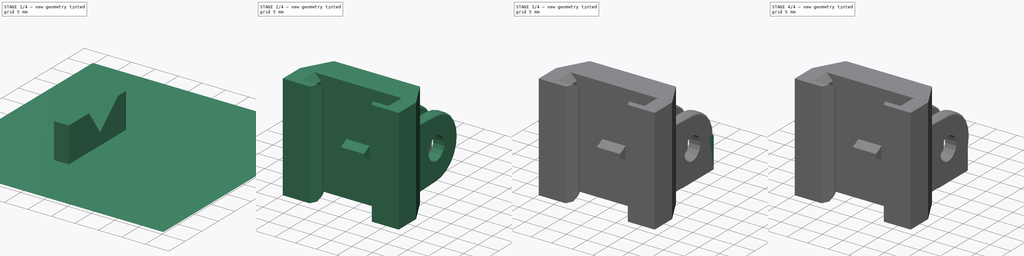
[diagram: build sequence overview — one tinted view per stage of 4, left to right]
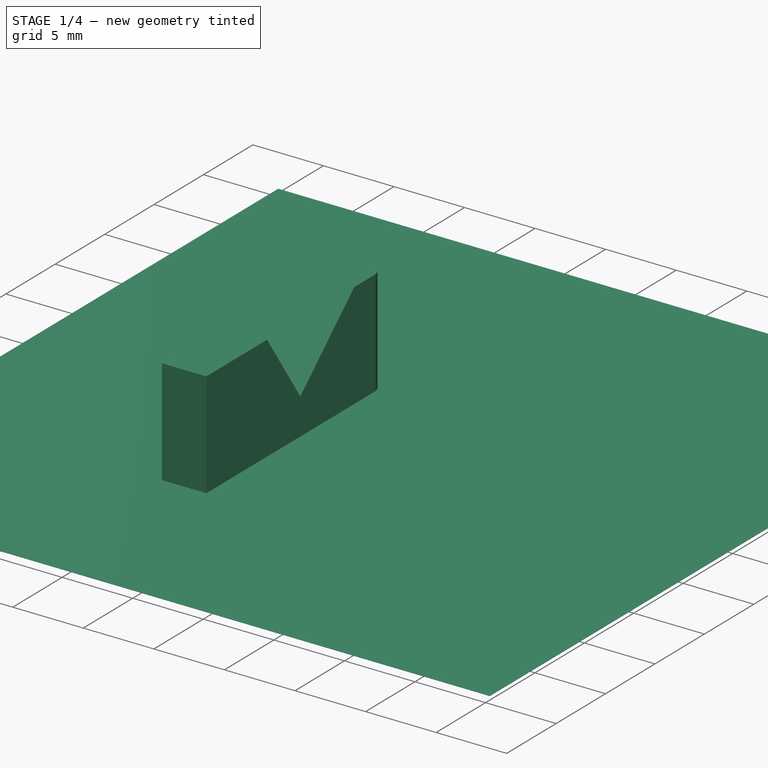
[diagram: stage 1 of 4 — iso view after this stage's code; geometry added in this stage tinted green]
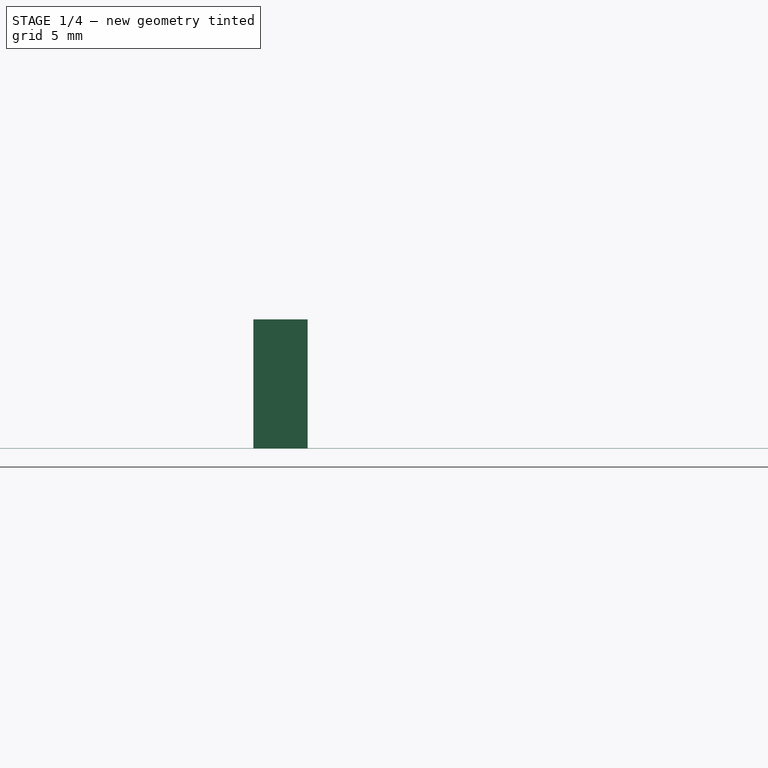
[diagram: stage 1 of 4 — front view after this stage's code; geometry added in this stage tinted green]
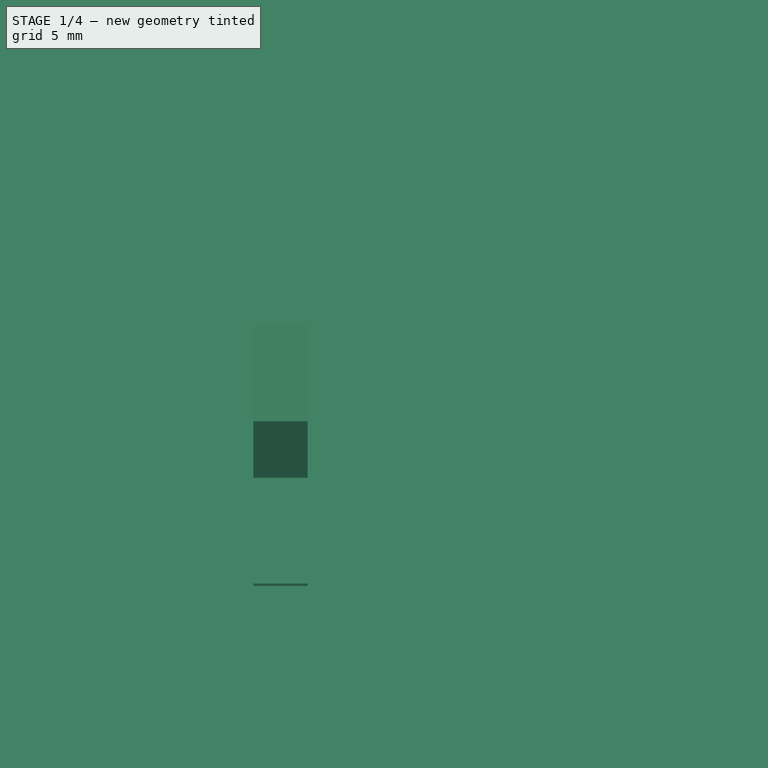
[diagram: stage 1 of 4 — top view after this stage's code; geometry added in this stage tinted green]
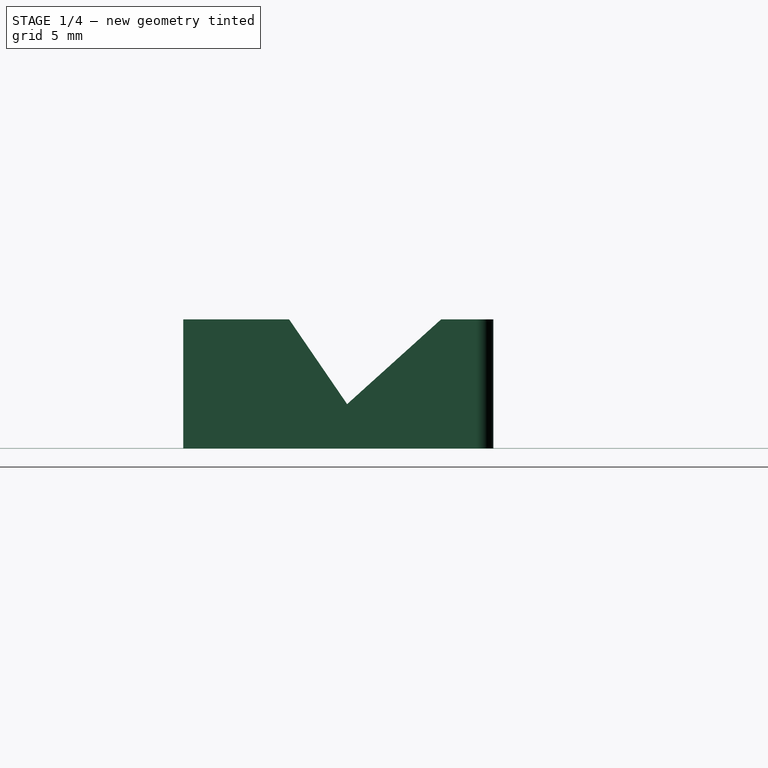
[diagram: stage 1 of 4 — right view after this stage's code; geometry added in this stage tinted green]
FCSTD DOCUMENT  (FreeCAD 0.16R6045 (Git))
Label: nerf_gopro
License: All rights reserved
LicenseURL: http://en.wikipedia.org/wiki/All_rights_reserved
objects: PartDesign::Fillet×4, Part::Box×4, Sketcher::SketchObject×3, PartDesign::Pocket×3, Part::Feature×2, Part::MultiFuse×2, Part::Cut×1
note: 22 computed .brp shape members not serialized (recipe doc carries the construction recipe); baked Part::Feature solids carry a one-line shape summary decoded from their .brp

FEATURE [Part::Box] Box  label="Cube"
  Height = 0.02
  Length = 50
  Placement = pos=(-19,-11,0) rot=(0,0,1;0rad)
  Width = 50
FEATURE [Part::Box] Box003  label="Cube003"
  Height = 7.5
  Length = 3.15
  Placement = pos=(-1.58,2.35,0) rot=(0,0,1;0rad)
  Width = 18
FEATURE [Sketcher::SketchObject] Sketch002
  Placement = pos=(-1.58,2.35,0) rot=(0.57735,-0.57735,-0.57735;2.0944rad)
  Support = -> Box003 [Face1]
  sketch-geometry (3):
    g0: LineSegment StartX=-15.5982 StartY=8.07292 StartZ=0 EndX=-9.50937 EndY=2.58212 EndZ=0
    g1: LineSegment StartX=-9.50937 StartY=2.58212 StartZ=0 EndX=-5.26895 EndY=8.77965 EndZ=0
    g2: LineSegment StartX=-5.26895 StartY=8.77965 StartZ=0 EndX=-15.5982 EndY=8.07292 EndZ=0
  constraints (3):
    c: Coincident(g0,g1)
    c: Coincident(g1,g2)
    c: Coincident(g2,g0)
FEATURE [PartDesign::Pocket] Pocket002
  Length = 5
  Placement = pos=(-1.58,2.35,0) rot=(0,0,1;0rad)
  Sketch = -> Sketch002
  Type = 0
FEATURE [PartDesign::Fillet] Fillet003
  Base = -> Pocket002 [Edge5,Edge18]
  Placement = pos=(-1.58,2.35,0) rot=(0,0,1;0rad)
  Radius = 1
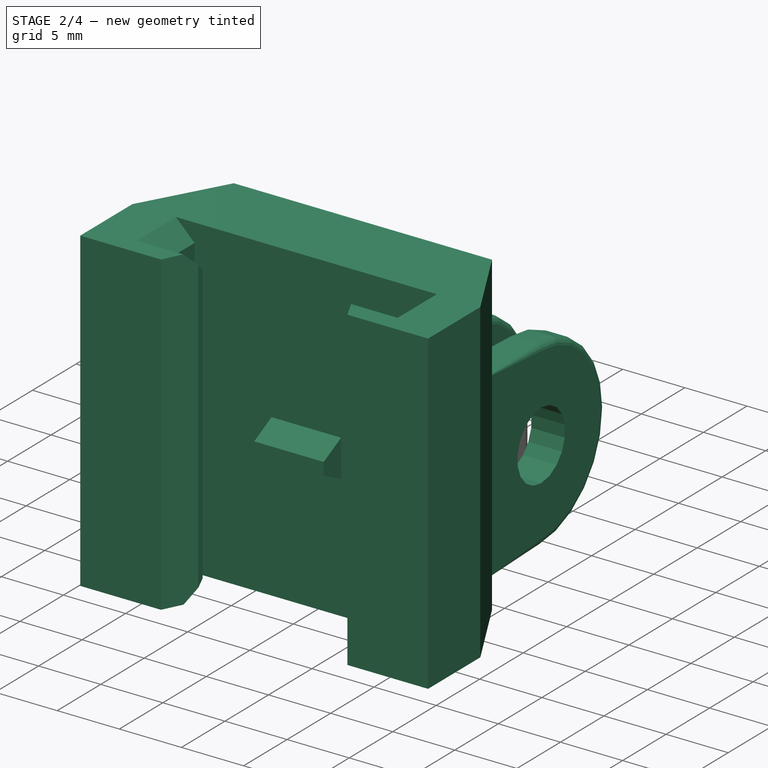
[diagram: stage 2 of 4 — iso view after this stage's code; geometry added in this stage tinted green]
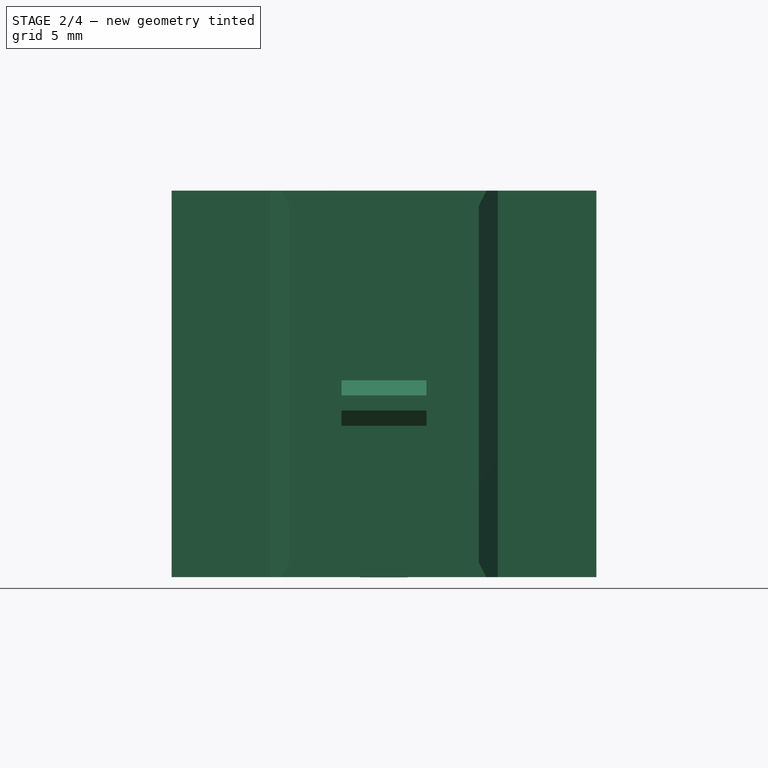
[diagram: stage 2 of 4 — front view after this stage's code; geometry added in this stage tinted green]
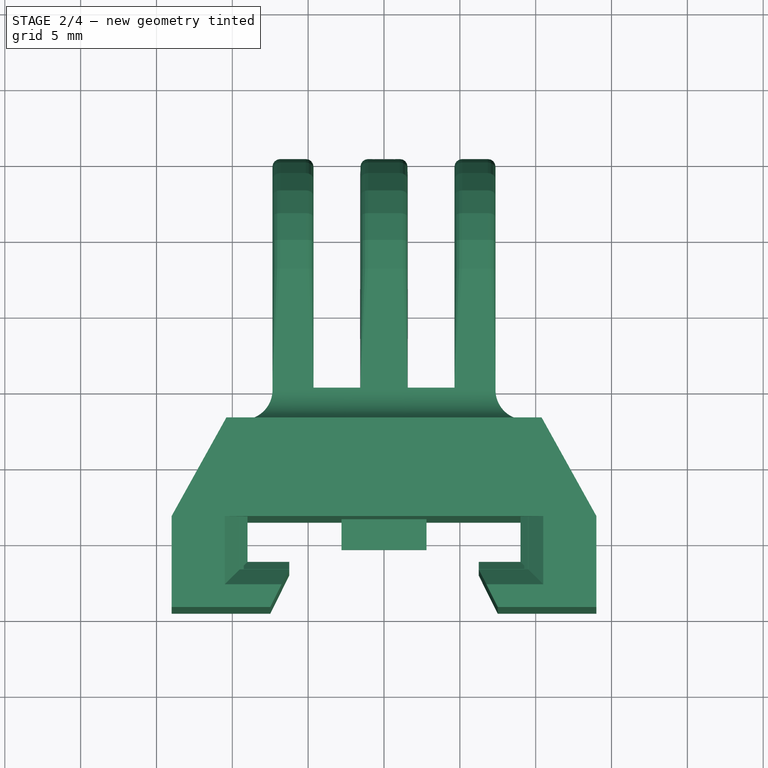
[diagram: stage 2 of 4 — top view after this stage's code; geometry added in this stage tinted green]
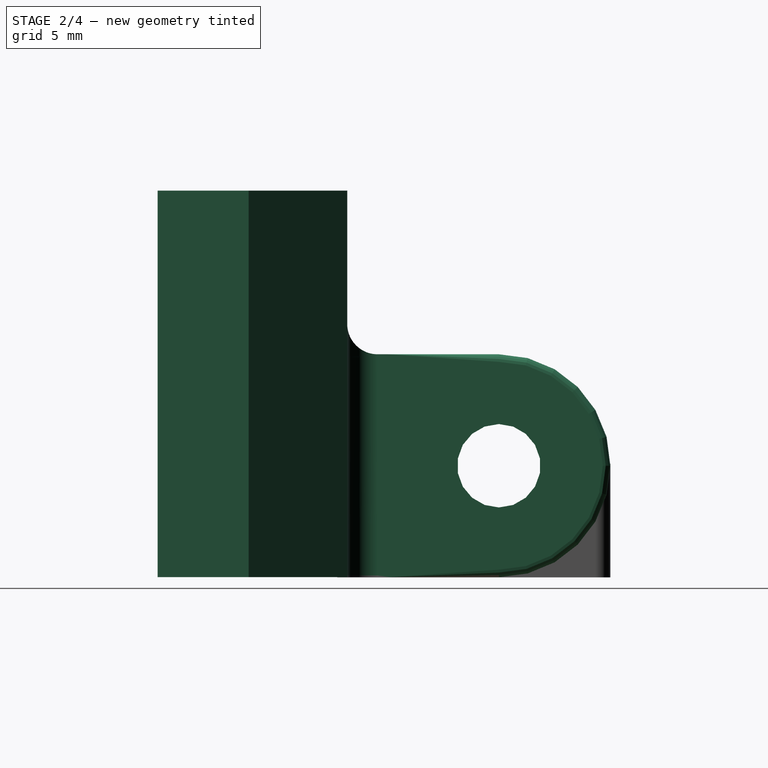
[diagram: stage 2 of 4 — right view after this stage's code; geometry added in this stage tinted green]
FEATURE [Part::Feature] gpm_triple_naked001_solid  label="gpm_triple_naked001 (Solid)"
  Placement = pos=(0,0,-5.64) rot=(0,0,1;0rad)
  shape: bbox 14.7 x 18.2 x 14.7 mm, 1154 faces (baked)
FEATURE [Part::Feature] Cut001_solid  label="Cut001 (Solid)"
  shape: bbox 28 x 12.5 x 25.5 mm, 143 faces (baked)
FEATURE [Part::MultiFuse] Fusion
  Shapes = -> [gpm_triple_naked001_solid,Cut001_solid]
FEATURE [PartDesign::Fillet] Fillet
  Base = -> Fusion [Edge363,Edge383,Edge396]
  Radius = 2
FEATURE [Part::Cut] Cut
  Base = -> Fillet
  Tool = -> Box
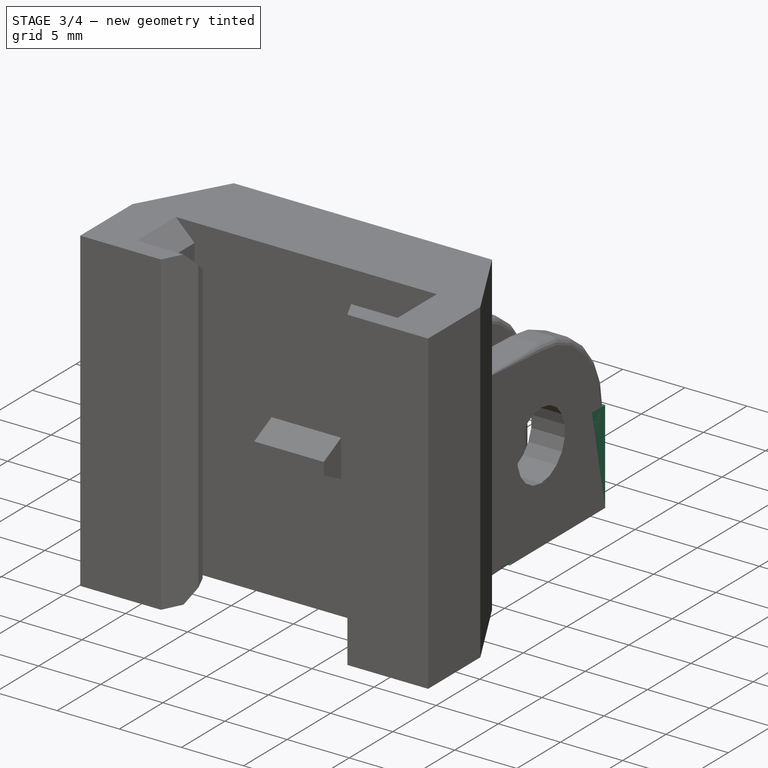
[diagram: stage 3 of 4 — iso view after this stage's code; geometry added in this stage tinted green]
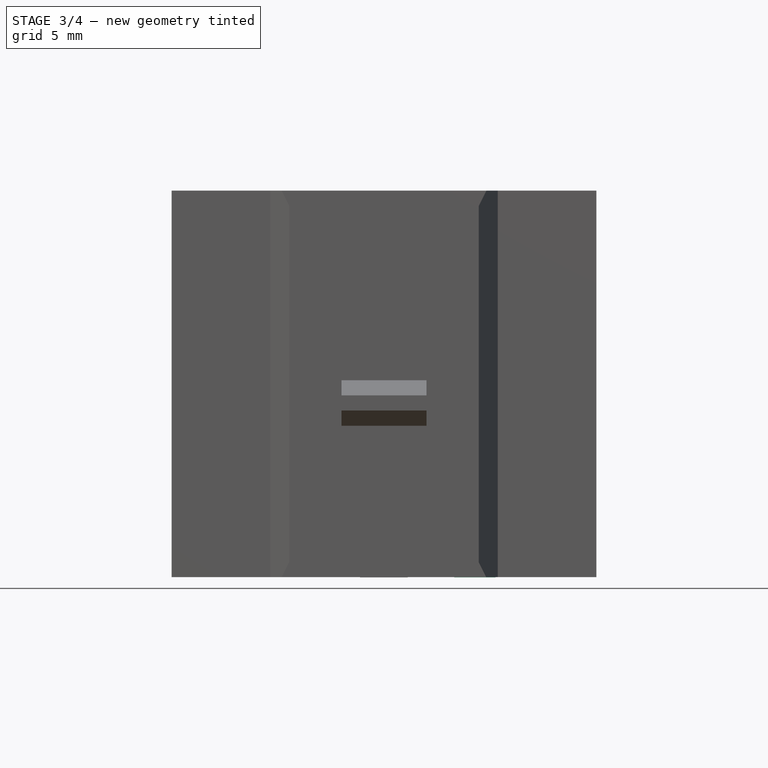
[diagram: stage 3 of 4 — front view after this stage's code; geometry added in this stage tinted green]
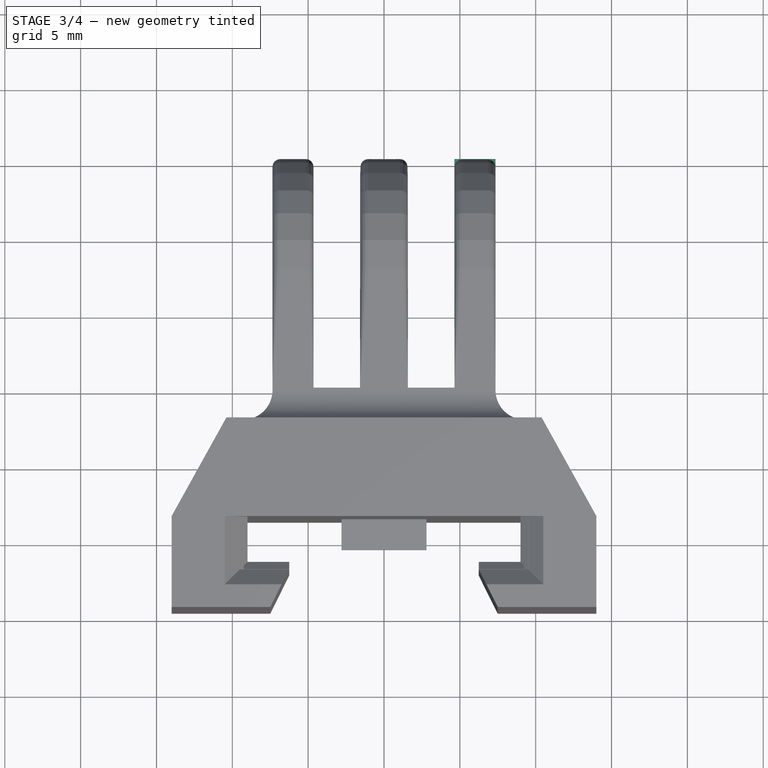
[diagram: stage 3 of 4 — top view after this stage's code; geometry added in this stage tinted green]
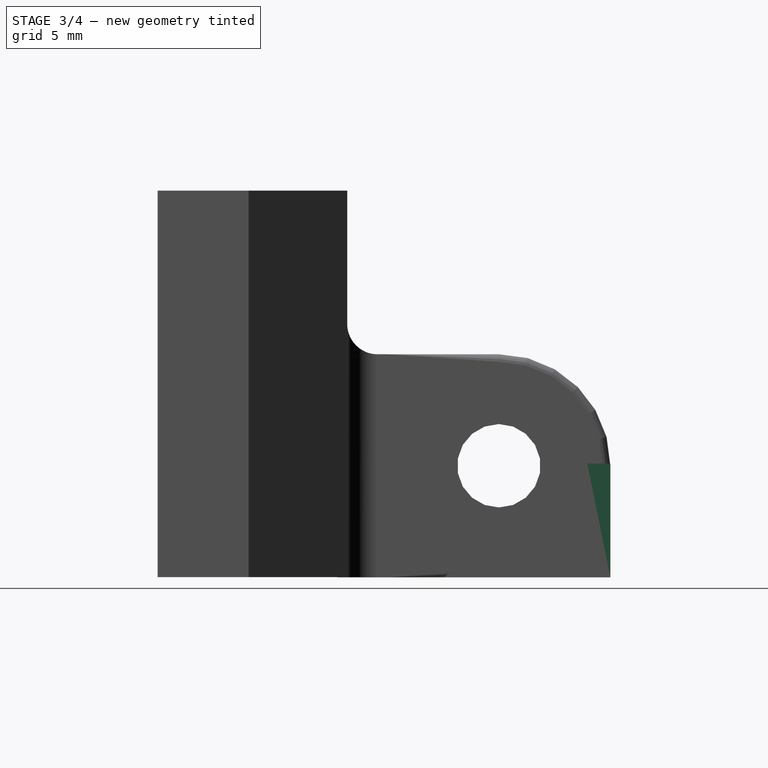
[diagram: stage 3 of 4 — right view after this stage's code; geometry added in this stage tinted green]
FEATURE [Part::Box] Box002  label="Cube002"
  Height = 7.5
  Length = 2.71
  Placement = pos=(4.64,9.35,0) rot=(0,0,1;0rad)
  Width = 11
FEATURE [Sketcher::SketchObject] Sketch001
  Placement = pos=(4.64,9.35,0) rot=(0.57735,-0.57735,-0.57735;2.0944rad)
  Support = -> Box002 [Face1]
  sketch-geometry (3):
    g0: LineSegment StartX=-9.54061 StartY=7.55095 StartZ=0 EndX=0.165381 EndY=-0.144127 EndZ=0
    g1: LineSegment StartX=0.165381 StartY=-0.144127 StartZ=0 EndX=0.165381 EndY=8.59662 EndZ=0
    g2: LineSegment StartX=0.165381 StartY=8.59662 StartZ=0 EndX=-9.54061 EndY=7.55095 EndZ=0
  constraints (4):
    c: Coincident(g0,g1)
    c: Vertical(g1)
    c: Coincident(g1,g2)
    c: Coincident(g2,g0)
FEATURE [PartDesign::Pocket] Pocket001
  Length = 5
  Placement = pos=(4.64,9.35,0) rot=(0,0,1;0rad)
  Sketch = -> Sketch001
  Type = 0
FEATURE [Part::MultiFuse] Fusion001
  Shapes = -> [Fillet003,Cut]
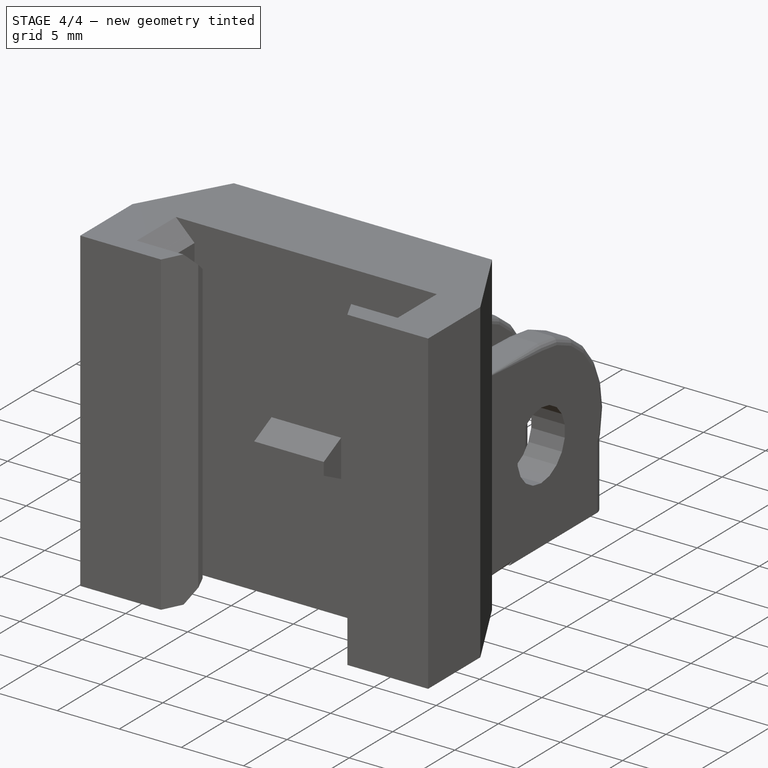
[diagram: stage 4 of 4 — iso view after this stage's code; geometry added in this stage tinted green]
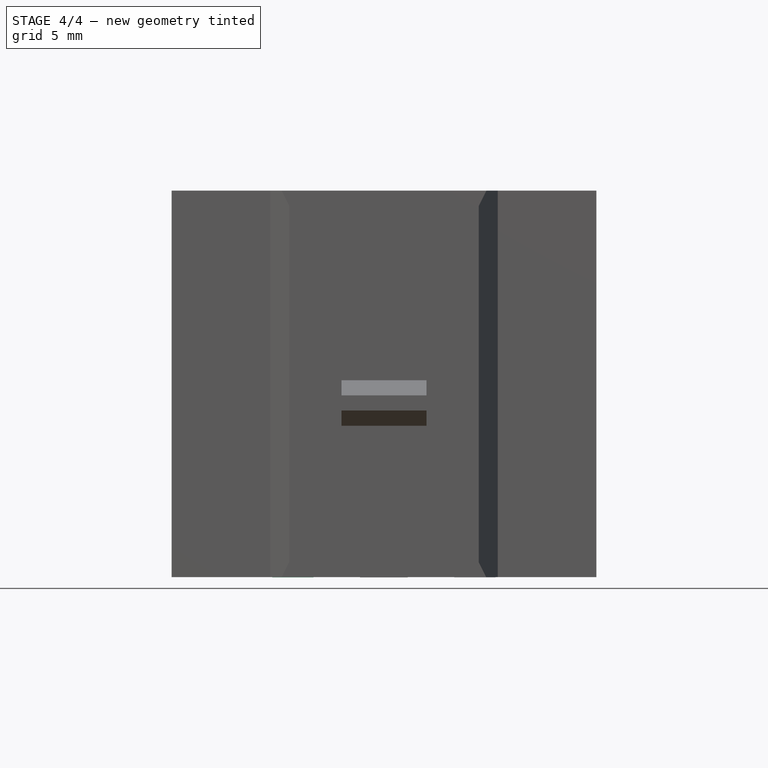
[diagram: stage 4 of 4 — front view after this stage's code; geometry added in this stage tinted green]
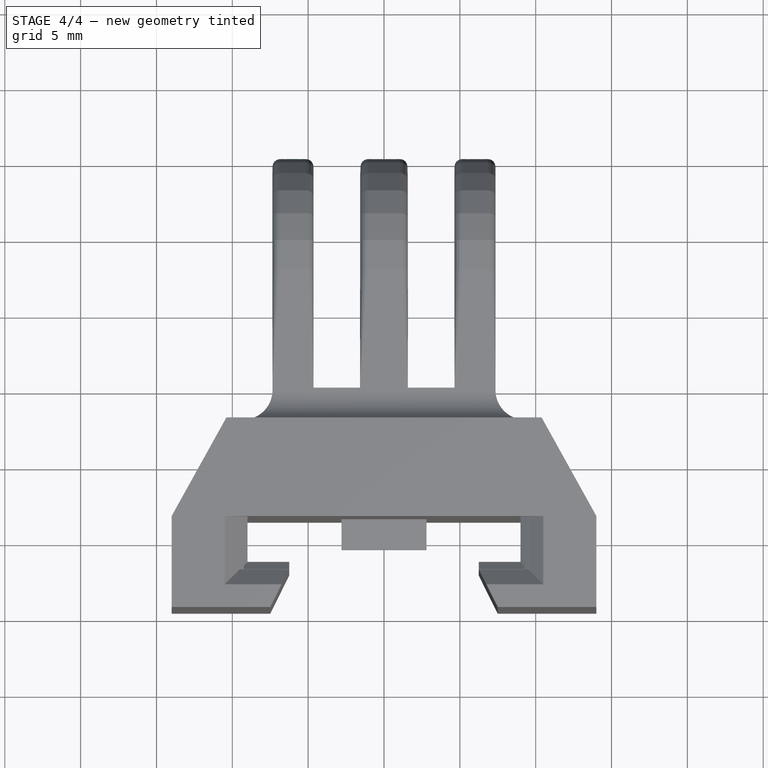
[diagram: stage 4 of 4 — top view after this stage's code; geometry added in this stage tinted green]
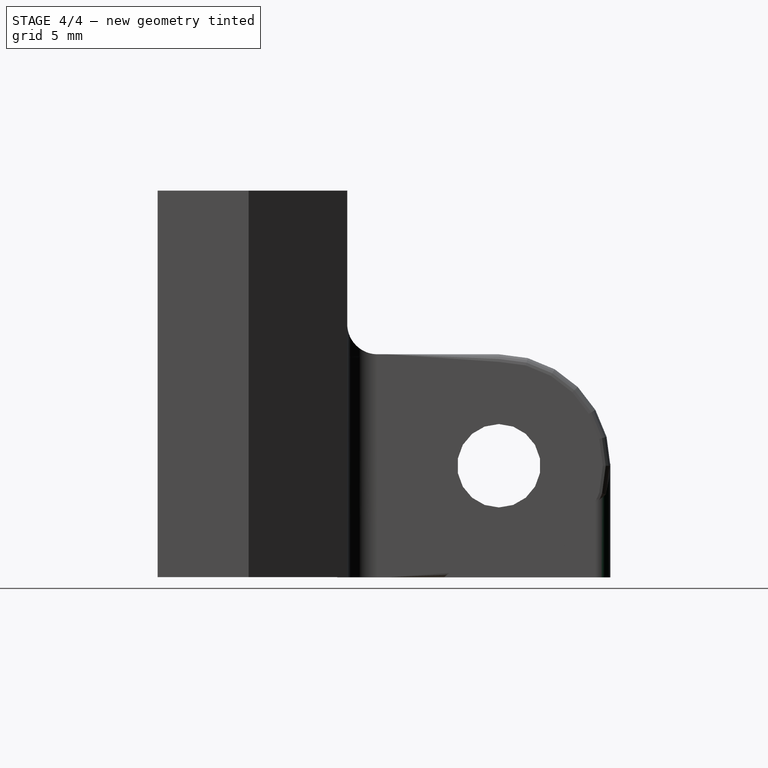
[diagram: stage 4 of 4 — right view after this stage's code; geometry added in this stage tinted green]
FEATURE [Part::Box] Box001  label="Cube001"
  Height = 7.5
  Length = 2.71
  Placement = pos=(-7.36,9.35,0) rot=(0,0,1;0rad)
  Width = 11
FEATURE [Sketcher::SketchObject] Sketch
  Placement = pos=(-7.36,9.35,0) rot=(0.57735,-0.57735,-0.57735;2.0944rad)
  Support = -> Box001 [Face1]
  sketch-geometry (3):
    g0: LineSegment StartX=-9.54061 StartY=7.55095 StartZ=0 EndX=0.165381 EndY=-0.144127 EndZ=0
    g1: LineSegment StartX=0.165381 StartY=-0.144127 StartZ=0 EndX=0.165381 EndY=8.59662 EndZ=0
    g2: LineSegment StartX=0.165381 StartY=8.59662 StartZ=0 EndX=-9.54061 EndY=7.55095 EndZ=0
  constraints (4):
    c: Coincident(g0,g1)
    c: Vertical(g1)
    c: Coincident(g1,g2)
    c: Coincident(g2,g0)
FEATURE [PartDesign::Pocket] Pocket
  Length = 5
  Placement = pos=(-7.36,9.35,0) rot=(0,0,1;0rad)
  Sketch = -> Sketch
  Type = 0
FEATURE [PartDesign::Fillet] Fillet001
  Base = -> Pocket [Edge2,Edge9]
  Placement = pos=(-7.36,9.35,0) rot=(0,0,1;0rad)
  Radius = 1
FEATURE [PartDesign::Fillet] Fillet002
  Base = -> Pocket001 [Edge2,Edge9]
  Placement = pos=(4.64,9.35,0) rot=(0,0,1;0rad)
  Radius = 1
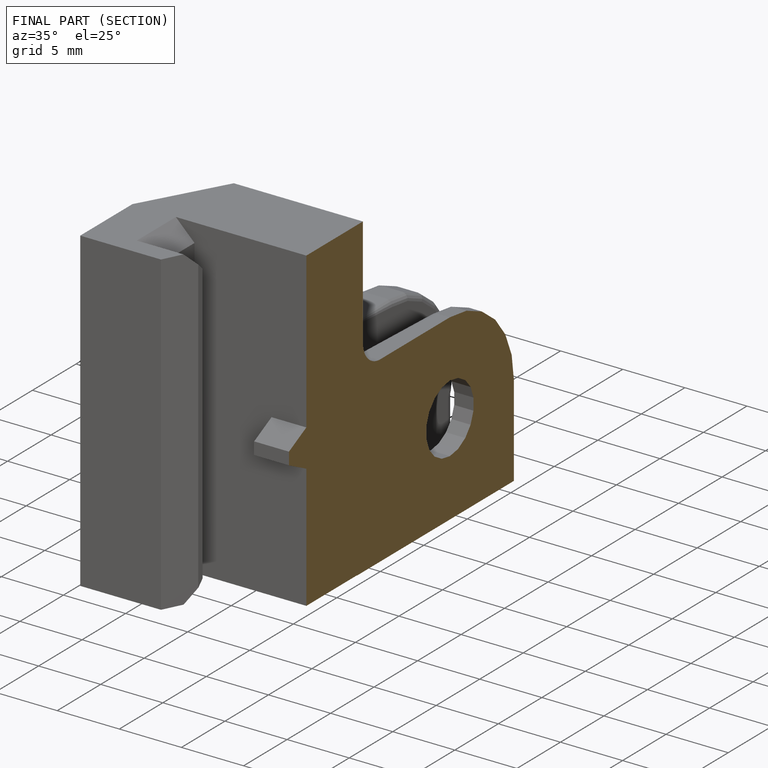
[diagram: finished part — half-section view (interior)]
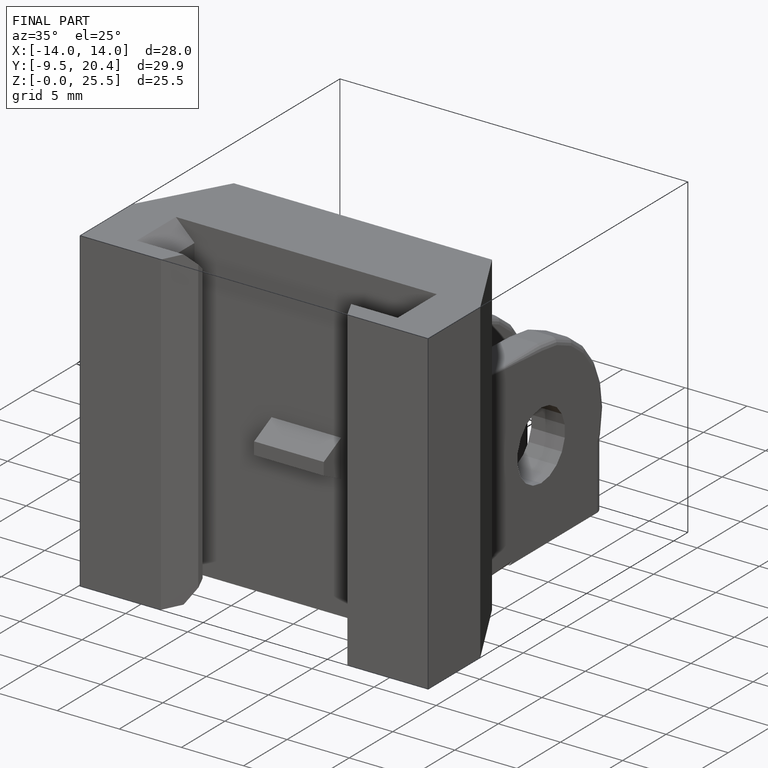
[diagram: finished part — iso view with bounding-box wireframe]
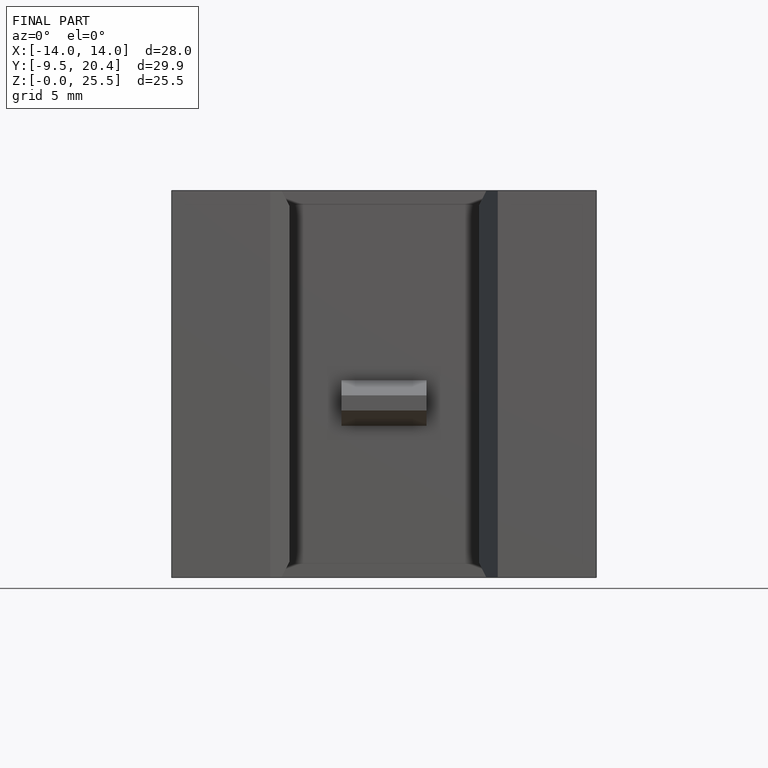
[diagram: finished part — front view with bounding-box wireframe]
